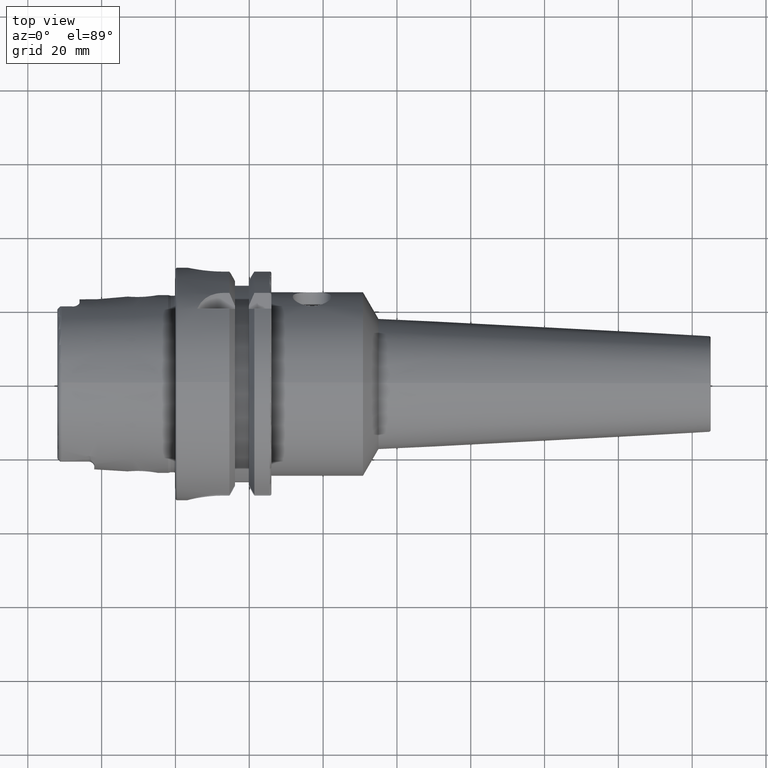
[diagram: clean part render]
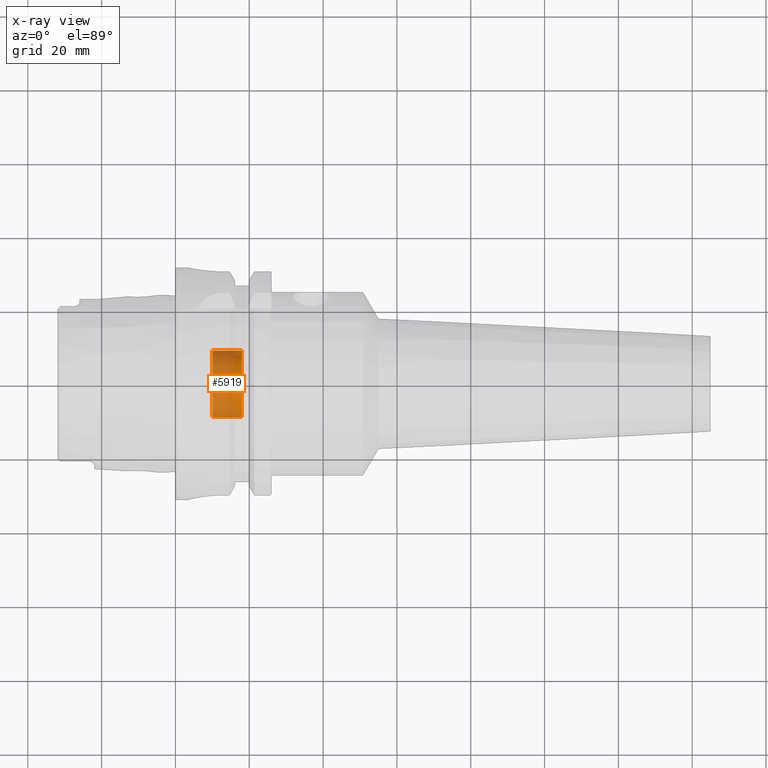
[diagram: x-ray — body ghosted, one internal face saturated and labeled with its STEP entity id]
A machine part, top view, then the same camera in x-ray: the body is ghosted and one INTERNAL B-rep face — a face not visible from any outside direction — is saturated and labeled: STEP entity #5919.
In plain terms, the highlighted cylindrical surface (edge-blend (fillet) strip) has radius 9 mm, axis along (-1, 0, 0).
Its self-contained STEP definition (entity closure, byte-faithful):
#5845=CARTESIAN_POINT('',(1.E1,0.E0,0.E0));
#5846=DIRECTION('',(1.E0,0.E0,0.E0));
#5847=DIRECTION('',(0.E0,1.E0,0.E0));
#5848=AXIS2_PLACEMENT_3D('',#5845,#5846,#5847);
#5850=DIRECTION('',(1.E0,0.E0,0.E0));
#5851=VECTOR('',#5850,8.E0);
#5852=CARTESIAN_POINT('',(1.E1,-9.E0,0.E0));
#5853=LINE('',#5852,#5851);
#5854=DIRECTION('',(1.E0,0.E0,0.E0));
#5855=VECTOR('',#5854,8.E0);
#5856=CARTESIAN_POINT('',(1.E1,9.E0,0.E0));
#5857=LINE('',#5856,#5855);
#5858=CARTESIAN_POINT('',(1.8E1,0.E0,0.E0));
#5859=DIRECTION('',(1.E0,0.E0,0.E0));
#5860=DIRECTION('',(0.E0,1.E0,0.E0));
#5861=AXIS2_PLACEMENT_3D('',#5858,#5859,#5860);
#5878=CARTESIAN_POINT('',(1.8E1,9.E0,0.E0));
#5879=CARTESIAN_POINT('',(1.8E1,-9.E0,0.E0));
#5880=VERTEX_POINT('',#5878);
#5881=VERTEX_POINT('',#5879);
#5882=CARTESIAN_POINT('',(1.E1,9.E0,0.E0));
#5883=CARTESIAN_POINT('',(1.E1,-9.E0,0.E0));
#5884=VERTEX_POINT('',#5882);
#5885=VERTEX_POINT('',#5883);
#5906=CARTESIAN_POINT('',(2.376268102482E1,0.E0,0.E0));
#5907=DIRECTION('',(-1.E0,0.E0,0.E0));
#5908=DIRECTION('',(0.E0,1.E0,0.E0));
#5909=AXIS2_PLACEMENT_3D('',#5906,#5907,#5908);
#5910=CYLINDRICAL_SURFACE('',#5909,9.E0);
#5912=ORIENTED_EDGE('',*,*,#5911,.T.);
#5913=ORIENTED_EDGE('',*,*,#5901,.T.);
#5915=ORIENTED_EDGE('',*,*,#5914,.F.);
#5916=ORIENTED_EDGE('',*,*,#5897,.F.);
#5917=EDGE_LOOP('',(#5912,#5913,#5915,#5916));
#5918=FACE_OUTER_BOUND('',#5917,.F.);
#5919=ADVANCED_FACE('',(#5918),#5910,.F.);
#5849=CIRCLE('',#5848,9.E0);
#5862=CIRCLE('',#5861,9.E0);
#5897=EDGE_CURVE('',#5884,#5880,#5857,.T.);
#5901=EDGE_CURVE('',#5885,#5881,#5853,.T.);
#5911=EDGE_CURVE('',#5884,#5885,#5849,.T.);
#5914=EDGE_CURVE('',#5880,#5881,#5862,.T.);